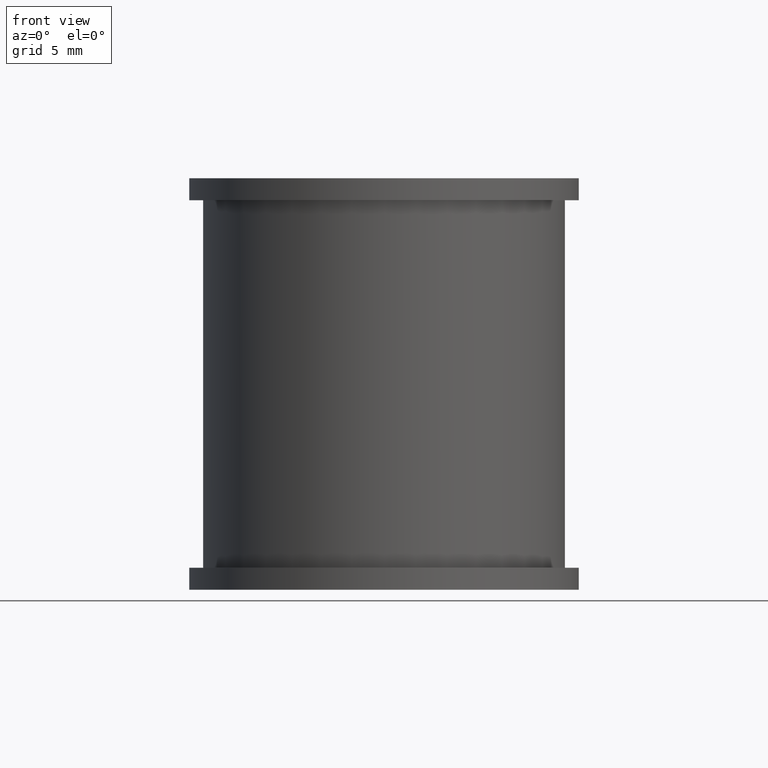
[diagram: clean part render]
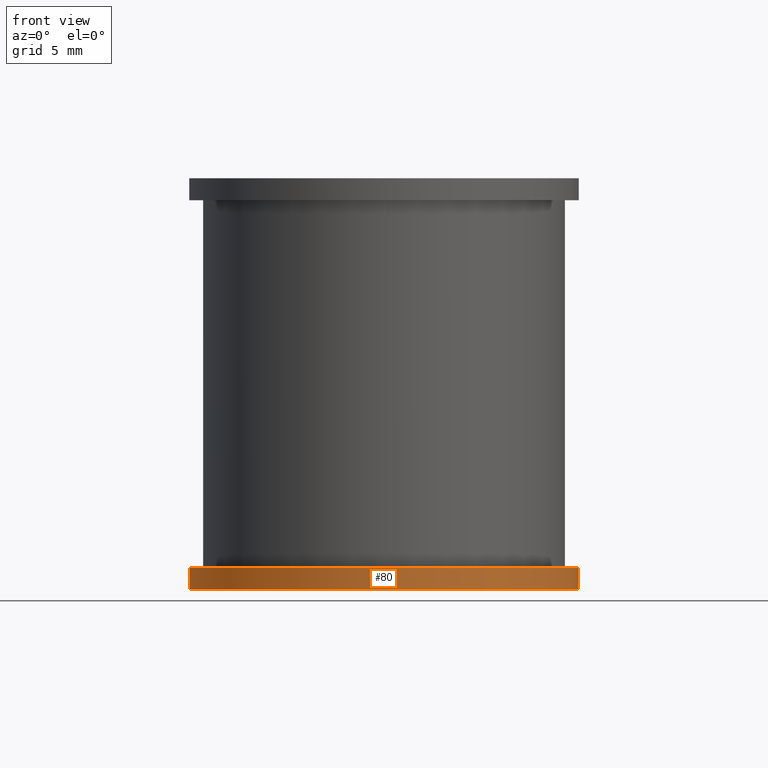
[diagram: same view with one face highlighted and labeled with its STEP entity id]
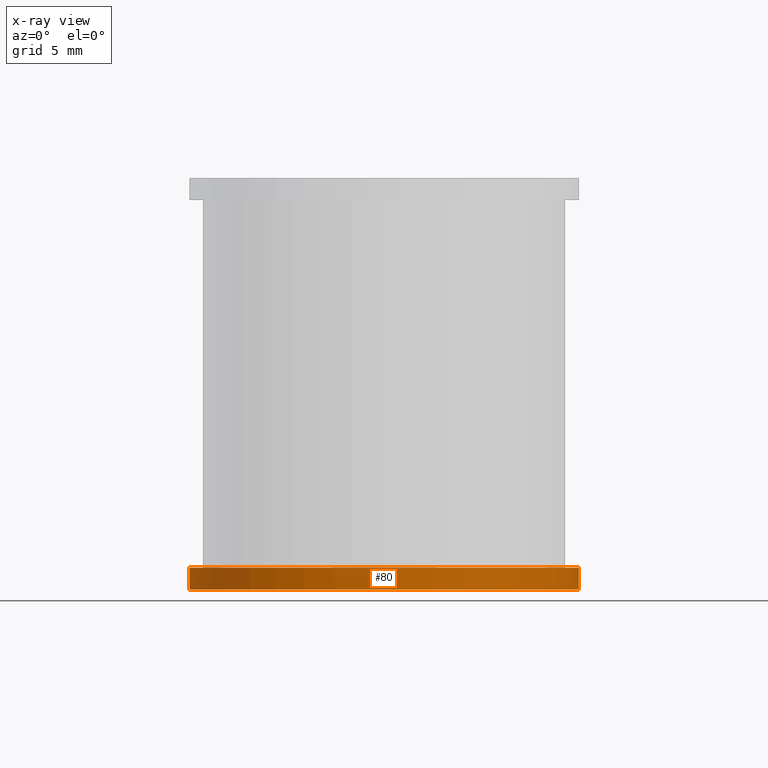
[diagram: x-ray of the same camera — body ghosted, the highlighted face saturated]
A machine part, front view. The second image highlights one B-rep face of the part: STEP entity #80.
The next image is the same camera in x-ray: the body ghosted, the highlighted face saturated — about 0% of this face is hidden behind the body in this view.
In plain terms, the highlighted cylindrical surface (partial cylindrical patch) has radius 13.26 mm, axis along (0, 0, -1).
Its self-contained STEP definition (entity closure, byte-faithful):
#80 = ADVANCED_FACE( '', ( #112 ), #113, .T. );
#112 = FACE_OUTER_BOUND( '', #164, .T. );
#113 = CYLINDRICAL_SURFACE( '', #165, 13.2600000000000 );
#164 = EDGE_LOOP( '', ( #261, #262, #263, #264 ) );
#165 = AXIS2_PLACEMENT_3D( '', #265, #266, #267 );
#261 = ORIENTED_EDGE( '', *, *, #464, .T. );
#262 = ORIENTED_EDGE( '', *, *, #465, .T. );
#263 = ORIENTED_EDGE( '', *, *, #458, .F. );
#264 = ORIENTED_EDGE( '', *, *, #466, .T. );
#265 = CARTESIAN_POINT( '', ( 0.000000000000000, 0.000000000000000, -26.5000000000000 ) );
#266 = DIRECTION( '', ( 0.000000000000000, 0.000000000000000, -1.00000000000000 ) );
#267 = DIRECTION( '', ( 0.000000000000000, 1.00000000000000, 0.000000000000000 ) );
#458 = EDGE_CURVE( '', #556, #558, #559, .T. );
#464 = EDGE_CURVE( '', #569, #570, #571, .T. );
#465 = EDGE_CURVE( '', #570, #558, #572, .T. );
#466 = EDGE_CURVE( '', #556, #569, #573, .F. );
#556 = VERTEX_POINT( '', #697 );
#558 = VERTEX_POINT( '', #699 );
#559 = CIRCLE( '', #700, 13.2600000000000 );
#569 = VERTEX_POINT( '', #713 );
#570 = VERTEX_POINT( '', #714 );
#571 = CIRCLE( '', #715, 13.2600000000000 );
#572 = LINE( '', #716, #717 );
#573 = LINE( '', #718, #719 );
#697 = CARTESIAN_POINT( '', ( -6.56269035532995, 11.5220959595058, -25.0000000000000 ) );
#699 = CARTESIAN_POINT( '', ( 6.56269035532995, 11.5220959595058, -25.0000000000000 ) );
#700 = AXIS2_PLACEMENT_3D( '', #836, #837, #838 );
#713 = CARTESIAN_POINT( '', ( -6.56269035532995, 11.5220959595058, -26.5000000000000 ) );
#714 = CARTESIAN_POINT( '', ( 6.56269035532995, 11.5220959595058, -26.5000000000000 ) );
#715 = AXIS2_PLACEMENT_3D( '', #848, #849, #850 );
#716 = CARTESIAN_POINT( '', ( 6.56269035532995, 11.5220959595058, -26.5000000000000 ) );
#717 = VECTOR( '', #851, 1000.00000000000 );
#718 = CARTESIAN_POINT( '', ( -6.56269035532995, 11.5220959595058, -26.5000000000000 ) );
#719 = VECTOR( '', #852, 1000.00000000000 );
#836 = CARTESIAN_POINT( '', ( 0.000000000000000, 0.000000000000000, -25.0000000000000 ) );
#837 = DIRECTION( '', ( 0.000000000000000, 0.000000000000000, 1.00000000000000 ) );
#838 = DIRECTION( '', ( 1.00000000000000, 0.000000000000000, 0.000000000000000 ) );
#848 = CARTESIAN_POINT( '', ( 0.000000000000000, 0.000000000000000, -26.5000000000000 ) );
#849 = DIRECTION( '', ( 0.000000000000000, 0.000000000000000, 1.00000000000000 ) );
#850 = DIRECTION( '', ( 1.00000000000000, 0.000000000000000, 0.000000000000000 ) );
#851 = DIRECTION( '', ( 0.000000000000000, 0.000000000000000, 1.00000000000000 ) );
#852 = DIRECTION( '', ( 0.000000000000000, 0.000000000000000, 1.00000000000000 ) );